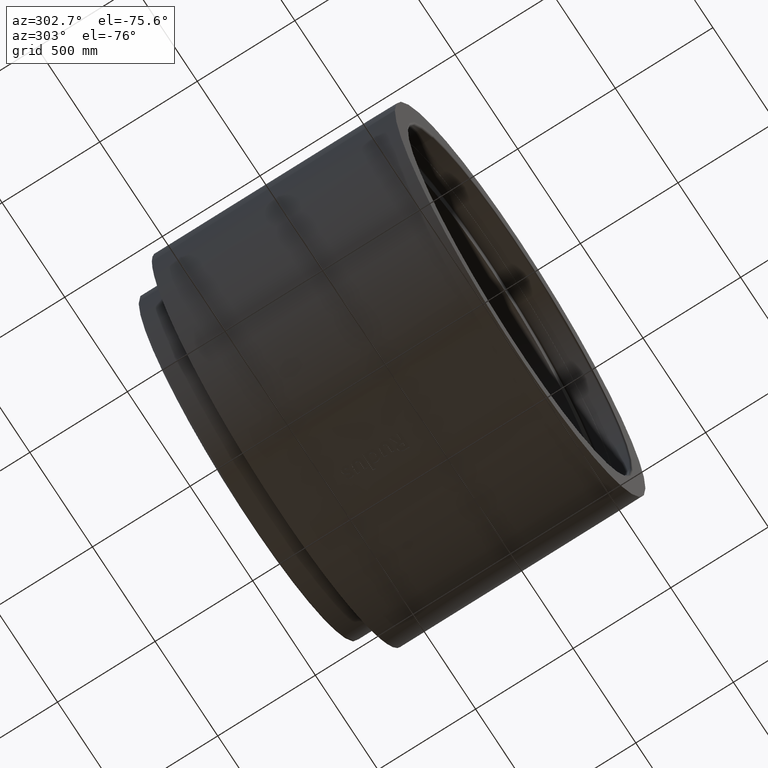
[diagram: clean part render]
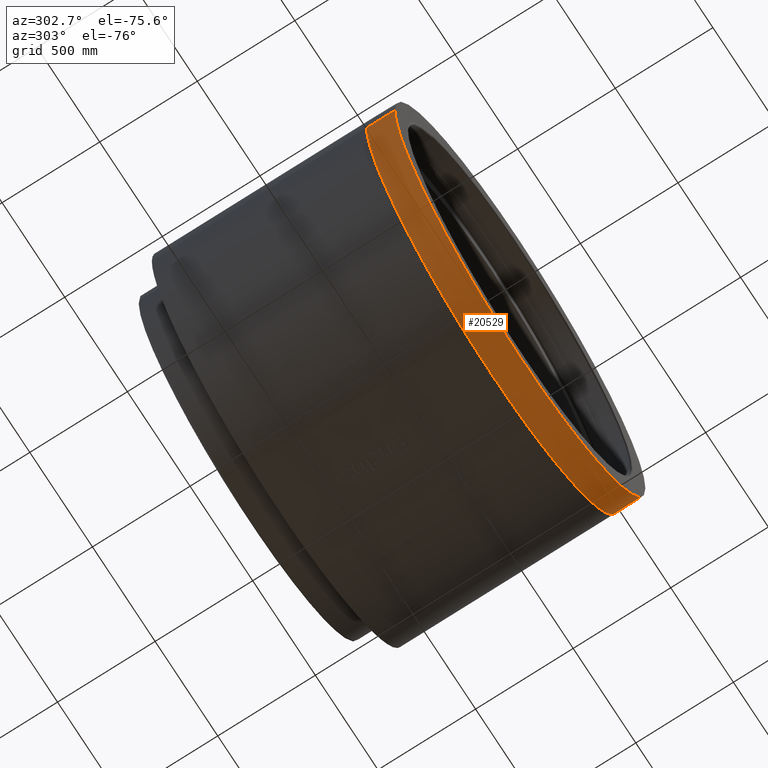
[diagram: same view with one face highlighted and labeled with its STEP entity id]
A machine part, auxiliary view. The second image highlights one B-rep face of the part: STEP entity #20529.
In plain terms, the highlighted cylindrical surface (partial cylindrical patch) has radius 1000 mm, axis along (0, 1, 0).
Its self-contained STEP definition (entity closure, byte-faithful):
#117 = DIRECTION ( 'NONE',  ( 1.000000000000000000, 0.0000000000000000000, 0.0000000000000000000 ) ) ;
#255 = CARTESIAN_POINT ( 'NONE',  ( 954.4254368833019271, 298.9811002059240082, 1.280258037643134373E-14 ) ) ;
#368 = CARTESIAN_POINT ( 'NONE',  ( 894.4812398720190458, 447.4592981865495744, -0.0000000000000000000 ) ) ;
#701 = CARTESIAN_POINT ( 'NONE',  ( 930.7395727107934817, 366.1107046890919605, 1.737484606739122064E-14 ) ) ;
#768 = DIRECTION ( 'NONE',  ( 1.000000000000000000, 0.0000000000000000000, 0.0000000000000000000 ) ) ;
#1073 = B_SPLINE_CURVE_WITH_KNOTS ( 'NONE', 3,
 ( #8894, #16907, #9972, #11707, #5312, #20500, #15951, #17685, #1845, #10630, #13435, #14102, #19538, #13554 ),
 .UNSPECIFIED., .F., .F.,
 ( 4, 2, 2, 2, 2, 2, 4 ),
 ( 4.987354231555689132, 5.014024065213056325, 5.027358982041739921, 5.040693898870424405, 5.094033566185158790, 5.147373233499894063, 5.200712900814629336 ),
 .UNSPECIFIED. ) ;
#1331 = CARTESIAN_POINT ( 'NONE',  ( 349.6371989598051186, 936.8942988489336585, 0.0000000000000000000 ) ) ;
#1406 = CARTESIAN_POINT ( 'NONE',  ( 707.1067811868551871, 707.1067811862399139, 0.0000000000000000000 ) ) ;
#1612 = CARTESIAN_POINT ( 'NONE',  ( 0.0000000000000000000, 0.0000000000000000000, 0.0000000000000000000 ) ) ;
#1628 = CARTESIAN_POINT ( 'NONE',  ( 0.0000000000000000000, 0.0000000000000000000, -145.0000000000000000 ) ) ;
#1662 = CARTESIAN_POINT ( 'NONE',  ( 0.0000000000000000000, 0.0000000000000000000, 0.0000000000000000000 ) ) ;
#1800 = CARTESIAN_POINT ( 'NONE',  ( -948.9008885398940265, 316.0750456681432183, -0.0000000000000000000 ) ) ;
#1845 = CARTESIAN_POINT ( 'NONE',  ( -366.6501687282503212, 930.5274086172532861, 8.390629814682015675E-14 ) ) ;
#1867 = DIRECTION ( 'NONE',  ( 1.000000000000000000, 0.0000000000000000000, 0.0000000000000000000 ) ) ;
#1885 = EDGE_CURVE ( 'NONE', #16751, #13611, #4011, .T. ) ;
#1887 = DIRECTION ( 'NONE',  ( 1.000000000000000000, 0.0000000000000000000, 0.0000000000000000000 ) ) ;
#1994 = VERTEX_POINT ( 'NONE', #15308 ) ;
#2908 = CARTESIAN_POINT ( 'NONE',  ( -959.4568226121741645, 281.8556466401756779, 0.0000000000000000000 ) ) ;
#3035 = FACE_OUTER_BOUND ( 'NONE', #21874, .T. ) ;
#3149 = CARTESIAN_POINT ( 'NONE',  ( 0.0000000000000000000, 0.0000000000000000000, -145.0000000000000000 ) ) ;
#3221 = DIRECTION ( 'NONE',  ( 0.0000000000000000000, 0.0000000000000000000, 1.000000000000000000 ) ) ;
#3420 = VERTEX_POINT ( 'NONE', #4038 ) ;
#3434 = CARTESIAN_POINT ( 'NONE',  ( 1000.000000000000000, 0.0000000000000000000, -145.0000000000000000 ) ) ;
#3494 = CARTESIAN_POINT ( 'NONE',  ( -1000.000000000000000, -5.229668935366834033E-10, 0.0000000000000000000 ) ) ;
#3620 = EDGE_CURVE ( 'NONE', #7922, #4619, #18807, .T. ) ;
#3835 = CARTESIAN_POINT ( 'NONE',  ( 959.4568226098743935, 281.8556466480033578, 0.0000000000000000000 ) ) ;
#4011 = CIRCLE ( 'NONE', #15080, 1000.000000000000000 ) ;
#4038 = CARTESIAN_POINT ( 'NONE',  ( 1000.000000000000000, 1.025221574302293195E-12, 0.0000000000000000000 ) ) ;
#4062 = CARTESIAN_POINT ( 'NONE',  ( 917.1248916036610126, 398.9926440380944541, 1.737484606739121749E-14 ) ) ;
#4128 = ORIENTED_EDGE ( 'NONE', *, *, #18892, .F. ) ;
#4158 = VERTEX_POINT ( 'NONE', #12683 ) ;
#4177 = ORIENTED_EDGE ( 'NONE', *, *, #4901, .F. ) ;
#4403 = ORIENTED_EDGE ( 'NONE', *, *, #11276, .F. ) ;
#4520 = AXIS2_PLACEMENT_3D ( 'NONE', #1628, #7382, #117 ) ;
#4583 = CARTESIAN_POINT ( 'NONE',  ( 0.0000000000000000000, 0.0000000000000000000, 0.0000000000000000000 ) ) ;
#4619 = VERTEX_POINT ( 'NONE', #3494 ) ;
#4684 = CARTESIAN_POINT ( 'NONE',  ( 479.1363864309300311, 877.7404646009608769, 0.0000000000000000000 ) ) ;
#4901 = EDGE_CURVE ( 'NONE', #5641, #16751, #10960, .T. ) ;
#4915 = CARTESIAN_POINT ( 'NONE',  ( 366.4080122112603135, 930.4957199244865933, 0.0000000000000000000 ) ) ;
#4997 = CARTESIAN_POINT ( 'NONE',  ( 0.0000000000000000000, 0.0000000000000000000, 0.0000000000000000000 ) ) ;
#5106 = CIRCLE ( 'NONE', #16534, 1000.000000000000000 ) ;
#5312 = CARTESIAN_POINT ( 'NONE',  ( -316.1182583125949463, 948.7294627091035863, 0.0000000000000000000 ) ) ;
#5641 = VERTEX_POINT ( 'NONE', #10528 ) ;
#5793 = CARTESIAN_POINT ( 'NONE',  ( 948.9469910126274499, 315.9342490076052741, -8.566065496630920222E-14 ) ) ;
#6310 = VERTEX_POINT ( 'NONE', #9674 ) ;
#6571 = CARTESIAN_POINT ( 'NONE',  ( 0.0000000000000000000, 0.0000000000000000000, 0.0000000000000000000 ) ) ;
#6760 = EDGE_CURVE ( 'NONE', #21596, #3420, #10712, .T. ) ;
#6996 = CARTESIAN_POINT ( 'NONE',  ( -894.4142288718787768, 447.5915659497110255, 1.959876102785254431E-14 ) ) ;
#7324 = DIRECTION ( 'NONE',  ( 0.0000000000000000000, 0.0000000000000000000, 1.000000000000000000 ) ) ;
#7382 = DIRECTION ( 'NONE',  ( 0.0000000000000000000, 0.0000000000000000000, 1.000000000000000000 ) ) ;
#7516 = CARTESIAN_POINT ( 'NONE',  ( 937.1040614084747631, 349.4990522058345164, -8.566065496630916436E-14 ) ) ;
#7898 = CARTESIAN_POINT ( 'NONE',  ( 0.0000000000000000000, 0.0000000000000000000, 0.0000000000000000000 ) ) ;
#7922 = VERTEX_POINT ( 'NONE', #2908 ) ;
#8076 = ORIENTED_EDGE ( 'NONE', *, *, #13749, .F. ) ;
#8332 = ORIENTED_EDGE ( 'NONE', *, *, #21711, .F. ) ;
#8512 = CARTESIAN_POINT ( 'NONE',  ( -877.7404645945704260, 479.1363864426369901, 0.0000000000000000000 ) ) ;
#8604 = CARTESIAN_POINT ( 'NONE',  ( 374.7229055514943639, 927.1780488637547251, -0.0000000000000000000 ) ) ;
#8621 = ORIENTED_EDGE ( 'NONE', *, *, #19972, .T. ) ;
#8665 = EDGE_CURVE ( 'NONE', #22193, #6310, #15098, .T. ) ;
#8734 = CARTESIAN_POINT ( 'NONE',  ( -954.4014722613943604, 299.0626691899826710, 0.0000000000000000000 ) ) ;
#8801 = CIRCLE ( 'NONE', #9516, 1000.000000000000000 ) ;
#8849 = ORIENTED_EDGE ( 'NONE', *, *, #21185, .F. ) ;
#8894 = CARTESIAN_POINT ( 'NONE',  ( -281.8556466472109605, 959.4568226101071104, 0.0000000000000000000 ) ) ;
#8930 = ORIENTED_EDGE ( 'NONE', *, *, #1885, .F. ) ;
#9170 = CIRCLE ( 'NONE', #14718, 1000.000000000000000 ) ;
#9259 = CARTESIAN_POINT ( 'NONE',  ( 877.7404645852662952, 479.1363864596809208, 0.0000000000000000000 ) ) ;
#9267 = ORIENTED_EDGE ( 'NONE', *, *, #6760, .F. ) ;
#9516 = AXIS2_PLACEMENT_3D ( 'NONE', #4583, #15221, #22283 ) ;
#9566 = CIRCLE ( 'NONE', #21411, 1000.000000000000000 ) ;
#9628 = EDGE_CURVE ( 'NONE', #13611, #9928, #9566, .T. ) ;
#9674 = CARTESIAN_POINT ( 'NONE',  ( -707.1067811871918138, 707.1067811859031735, 0.0000000000000000000 ) ) ;
#9928 = VERTEX_POINT ( 'NONE', #13765 ) ;
#9972 = CARTESIAN_POINT ( 'NONE',  ( -299.0176954676985588, 954.2894078729104876, -0.0000000000000000000 ) ) ;
#10162 = CARTESIAN_POINT ( 'NONE',  ( 1.415534356397074589E-11, 1000.000000000000000, 0.0000000000000000000 ) ) ;
#10209 = DIRECTION ( 'NONE',  ( 0.0000000000000000000, 0.0000000000000000000, 1.000000000000000000 ) ) ;
#10234 = CARTESIAN_POINT ( 'NONE',  ( 399.4849717058735337, 916.9120298928789907, 0.0000000000000000000 ) ) ;
#10347 = CARTESIAN_POINT ( 'NONE',  ( 447.8007488909152016, 894.3088340696523346, -0.0000000000000000000 ) ) ;
#10378 = DIRECTION ( 'NONE',  ( 0.0000000000000000000, 0.0000000000000000000, 1.000000000000000000 ) ) ;
#10391 = CARTESIAN_POINT ( 'NONE',  ( -281.8556466472109605, 959.4568226101071104, 0.0000000000000000000 ) ) ;
#10528 = CARTESIAN_POINT ( 'NONE',  ( 959.4568226098743935, 281.8556466480033578, 0.0000000000000000000 ) ) ;
#10630 = CARTESIAN_POINT ( 'NONE',  ( -399.5454031970012920, 916.8844454434089357, 8.390629814682011888E-14 ) ) ;
#10712 = LINE ( 'NONE', #3434, #18417 ) ;
#10960 = B_SPLINE_CURVE_WITH_KNOTS ( 'NONE', 3,
 ( #3835, #255, #5793, #7516, #701, #4062, #14359, #368, #14582, #9259 ),
 .UNSPECIFIED., .F., .F.,
 ( 4, 2, 2, 2, 4 ),
 ( 3.419326812358439494, 3.472835357258845068, 3.526343902159251087, 3.579852447059656662, 3.633360991960062236 ),
 .UNSPECIFIED. ) ;
#11028 = CARTESIAN_POINT ( 'NONE',  ( 0.0000000000000000000, 0.0000000000000000000, 0.0000000000000000000 ) ) ;
#11068 = ORIENTED_EDGE ( 'NONE', *, *, #8665, .F. ) ;
#11276 = EDGE_CURVE ( 'NONE', #21154, #21161, #21356, .T. ) ;
#11534 = CIRCLE ( 'NONE', #4520, 1000.000000000000000 ) ;
#11707 = CARTESIAN_POINT ( 'NONE',  ( -311.8490221421824913, 950.1414576476832963, -0.0000000000000000000 ) ) ;
#12323 = CARTESIAN_POINT ( 'NONE',  ( -937.0236219067488719, 349.7167876532524247, 0.0000000000000000000 ) ) ;
#12478 = EDGE_CURVE ( 'NONE', #3420, #5641, #8801, .T. ) ;
#12549 = VERTEX_POINT ( 'NONE', #21797 ) ;
#12683 = CARTESIAN_POINT ( 'NONE',  ( -877.7404645945704260, 479.1363864426369901, 0.0000000000000000000 ) ) ;
#12822 = CARTESIAN_POINT ( 'NONE',  ( 0.0000000000000000000, 0.0000000000000000000, 0.0000000000000000000 ) ) ;
#13319 = CARTESIAN_POINT ( 'NONE',  ( 1000.000000000000000, 0.0000000000000000000, -145.0000000000000000 ) ) ;
#13435 = CARTESIAN_POINT ( 'NONE',  ( -415.7710880364472814, 909.6406989387593285, 8.320017359752857764E-29 ) ) ;
#13544 = EDGE_CURVE ( 'NONE', #4158, #7922, #19659, .T. ) ;
#13554 = CARTESIAN_POINT ( 'NONE',  ( -479.1363864615403259, 877.7404645842515265, 0.0000000000000000000 ) ) ;
#13611 = VERTEX_POINT ( 'NONE', #1406 ) ;
#13702 = CARTESIAN_POINT ( 'NONE',  ( 415.7496677787372619, 909.6509112306005136, -0.0000000000000000000 ) ) ;
#13720 = CARTESIAN_POINT ( 'NONE',  ( -886.2971988230929128, 463.4600906126808582, 2.166671187435639634E-30 ) ) ;
#13749 = EDGE_CURVE ( 'NONE', #12549, #21154, #5106, .T. ) ;
#13765 = CARTESIAN_POINT ( 'NONE',  ( 479.1363864309300311, 877.7404646009608769, 0.0000000000000000000 ) ) ;
#13835 = CARTESIAN_POINT ( 'NONE',  ( -959.4568226121741645, 281.8556466401756779, 0.0000000000000000000 ) ) ;
#13926 = CARTESIAN_POINT ( 'NONE',  ( 281.8556466530439479, 959.4568226083936224, 0.0000000000000000000 ) ) ;
#14102 = CARTESIAN_POINT ( 'NONE',  ( -447.7830955943975937, 894.3172432034672283, -0.0000000000000000000 ) ) ;
#14359 = CARTESIAN_POINT ( 'NONE',  ( 909.8747042972279360, 415.2629328706318006, 0.0000000000000000000 ) ) ;
#14450 = DIRECTION ( 'NONE',  ( 0.0000000000000000000, 0.0000000000000000000, 1.000000000000000000 ) ) ;
#14582 = CARTESIAN_POINT ( 'NONE',  ( 886.3379784083219874, 463.3853807036693979, 0.0000000000000000000 ) ) ;
#14718 = AXIS2_PLACEMENT_3D ( 'NONE', #6571, #3221, #19178 ) ;
#14843 = DIRECTION ( 'NONE',  ( 1.000000000000000000, 0.0000000000000000000, 0.0000000000000000000 ) ) ;
#14877 = CARTESIAN_POINT ( 'NONE',  ( -1000.000000000000000, 1.224646799147353249E-13, -145.0000000000000000 ) ) ;
#15051 = B_SPLINE_CURVE_WITH_KNOTS ( 'NONE', 3,
 ( #4684, #15201, #10347, #13702, #10234, #8604, #4915, #20994, #1331, #18906, #15317, #22720, #15551, #13926 ),
 .UNSPECIFIED., .F., .F.,
 ( 4, 2, 2, 2, 2, 2, 4 ),
 ( 4.203512169142102906, 4.256776722272756608, 4.310041275403410310, 4.336673551968737605, 4.349989690251400809, 4.363305828534064013, 4.416570381664717715 ),
 .UNSPECIFIED. ) ;
#15080 = AXIS2_PLACEMENT_3D ( 'NONE', #7898, #15193, #14843 ) ;
#15098 = CIRCLE ( 'NONE', #19179, 1000.000000000000000 ) ;
#15193 = DIRECTION ( 'NONE',  ( 0.0000000000000000000, 0.0000000000000000000, 1.000000000000000000 ) ) ;
#15201 = CARTESIAN_POINT ( 'NONE',  ( 463.5871242171307358, 886.2278589224316647, 0.0000000000000000000 ) ) ;
#15221 = DIRECTION ( 'NONE',  ( 0.0000000000000000000, 0.0000000000000000000, 1.000000000000000000 ) ) ;
#15308 = CARTESIAN_POINT ( 'NONE',  ( -1000.000000000000000, 1.224646799147353249E-13, -145.0000000000000000 ) ) ;
#15317 = CARTESIAN_POINT ( 'NONE',  ( 337.0030978205383008, 941.5127738992043760, 0.0000000000000000000 ) ) ;
#15487 = ORIENTED_EDGE ( 'NONE', *, *, #9628, .F. ) ;
#15551 = CARTESIAN_POINT ( 'NONE',  ( 298.9220567035735030, 954.4427836141380794, -0.0000000000000000000 ) ) ;
#15907 = CARTESIAN_POINT ( 'NONE',  ( -930.6469248024666285, 366.3461469554978294, -0.0000000000000000000 ) ) ;
#15951 = CARTESIAN_POINT ( 'NONE',  ( -328.8609666120618726, 944.3877308880830697, 0.0000000000000000000 ) ) ;
#16055 = ORIENTED_EDGE ( 'NONE', *, *, #19743, .T. ) ;
#16182 = AXIS2_PLACEMENT_3D ( 'NONE', #11028, #7324, #21559 ) ;
#16496 = ORIENTED_EDGE ( 'NONE', *, *, #13544, .F. ) ;
#16534 = AXIS2_PLACEMENT_3D ( 'NONE', #1662, #20870, #1887 ) ;
#16751 = VERTEX_POINT ( 'NONE', #18795 ) ;
#16907 = CARTESIAN_POINT ( 'NONE',  ( -290.4455333945659277, 956.9331502631406465, 0.0000000000000000000 ) ) ;
#17330 = AXIS2_PLACEMENT_3D ( 'NONE', #12822, #14450, #19998 ) ;
#17525 = CARTESIAN_POINT ( 'NONE',  ( -909.7775871391529563, 415.4738652575692868, 1.959876102785253484E-14 ) ) ;
#17685 = CARTESIAN_POINT ( 'NONE',  ( -349.9806287098217012, 936.9266435728067108, -2.876055383618279681E-29 ) ) ;
#17710 = DIRECTION ( 'NONE',  ( 0.0000000000000000000, 0.0000000000000000000, 1.000000000000000000 ) ) ;
#18148 = ORIENTED_EDGE ( 'NONE', *, *, #12478, .F. ) ;
#18417 = VECTOR ( 'NONE', #10378, 1000.000000000000000 ) ;
#18795 = CARTESIAN_POINT ( 'NONE',  ( 877.7404645852662952, 479.1363864596809208, 0.0000000000000000000 ) ) ;
#18807 = CIRCLE ( 'NONE', #17330, 1000.000000000000000 ) ;
#18892 = EDGE_CURVE ( 'NONE', #9928, #12549, #15051, .T. ) ;
#18906 = CARTESIAN_POINT ( 'NONE',  ( 341.2183296308622857, 939.9932920524744304, -0.0000000000000000000 ) ) ;
#18995 = CYLINDRICAL_SURFACE ( 'NONE', #21484, 1000.000000000000000 ) ;
#19178 = DIRECTION ( 'NONE',  ( 1.000000000000000000, 0.0000000000000000000, 0.0000000000000000000 ) ) ;
#19179 = AXIS2_PLACEMENT_3D ( 'NONE', #4997, #17710, #1867 ) ;
#19538 = CARTESIAN_POINT ( 'NONE',  ( -463.5694140344012339, 886.2375258322315403, 0.0000000000000000000 ) ) ;
#19659 = B_SPLINE_CURVE_WITH_KNOTS ( 'NONE', 3,
 ( #8512, #13720, #6996, #17525, #20787, #15907, #12323, #1800, #8734, #13835 ),
 .UNSPECIFIED., .F., .F.,
 ( 4, 2, 2, 2, 4 ),
 ( 5.770593809665360396, 5.824108631741113484, 5.877623453816866572, 5.931138275892620548, 5.984653097968373636 ),
 .UNSPECIFIED. ) ;
#19743 = EDGE_CURVE ( 'NONE', #21596, #1994, #11534, .T. ) ;
#19972 = EDGE_CURVE ( 'NONE', #1994, #4619, #20559, .T. ) ;
#19998 = DIRECTION ( 'NONE',  ( 1.000000000000000000, 0.0000000000000000000, 0.0000000000000000000 ) ) ;
#20202 = DIRECTION ( 'NONE',  ( 0.0000000000000000000, 0.0000000000000000000, 1.000000000000000000 ) ) ;
#20500 = CARTESIAN_POINT ( 'NONE',  ( -324.6228870534217208, 945.8530309625132304, -0.0000000000000000000 ) ) ;
#20529 = ADVANCED_FACE ( 'NONE', ( #3035 ), #18995, .T. ) ;
#20559 = LINE ( 'NONE', #14877, #20724 ) ;
#20724 = VECTOR ( 'NONE', #20202, 1000.000000000000000 ) ;
#20787 = CARTESIAN_POINT ( 'NONE',  ( -917.0239093791683445, 399.2246866147436322, -7.703719777548939033E-31 ) ) ;
#20870 = DIRECTION ( 'NONE',  ( 0.0000000000000000000, 0.0000000000000000000, 1.000000000000000000 ) ) ;
#20970 = DIRECTION ( 'NONE',  ( 1.000000000000000000, 0.0000000000000000000, 0.0000000000000000000 ) ) ;
#20994 = CARTESIAN_POINT ( 'NONE',  ( 353.8432563429062725, 935.3138228899307478, -0.0000000000000000000 ) ) ;
#21045 = DIRECTION ( 'NONE',  ( 0.0000000000000000000, 0.0000000000000000000, 1.000000000000000000 ) ) ;
#21154 = VERTEX_POINT ( 'NONE', #10162 ) ;
#21161 = VERTEX_POINT ( 'NONE', #10391 ) ;
#21185 = EDGE_CURVE ( 'NONE', #6310, #4158, #9170, .T. ) ;
#21209 = CARTESIAN_POINT ( 'NONE',  ( -479.1363864615403259, 877.7404645842515265, 0.0000000000000000000 ) ) ;
#21356 = CIRCLE ( 'NONE', #16182, 1000.000000000000000 ) ;
#21411 = AXIS2_PLACEMENT_3D ( 'NONE', #1612, #21045, #768 ) ;
#21484 = AXIS2_PLACEMENT_3D ( 'NONE', #3149, #10209, #20970 ) ;
#21559 = DIRECTION ( 'NONE',  ( 1.000000000000000000, 0.0000000000000000000, 0.0000000000000000000 ) ) ;
#21596 = VERTEX_POINT ( 'NONE', #13319 ) ;
#21711 = EDGE_CURVE ( 'NONE', #21161, #22193, #1073, .T. ) ;
#21797 = CARTESIAN_POINT ( 'NONE',  ( 281.8556466530439479, 959.4568226083936224, 0.0000000000000000000 ) ) ;
#21874 = EDGE_LOOP ( 'NONE', ( #16055, #8621, #22396, #16496, #8849, #11068, #8332, #4403, #8076, #4128, #15487, #8930, #4177, #18148, #9267 ) ) ;
#22193 = VERTEX_POINT ( 'NONE', #21209 ) ;
#22283 = DIRECTION ( 'NONE',  ( 1.000000000000000000, 0.0000000000000000000, 0.0000000000000000000 ) ) ;
#22396 = ORIENTED_EDGE ( 'NONE', *, *, #3620, .F. ) ;
#22720 = CARTESIAN_POINT ( 'NONE',  ( 315.8981344344925333, 948.9610485304796157, -0.0000000000000000000 ) ) ;